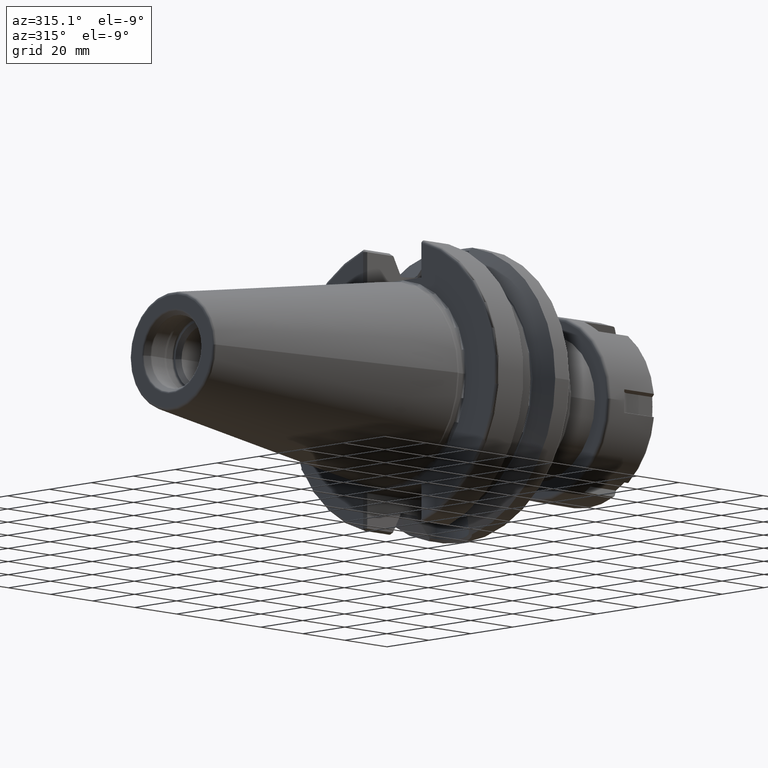
[diagram: clean part render]
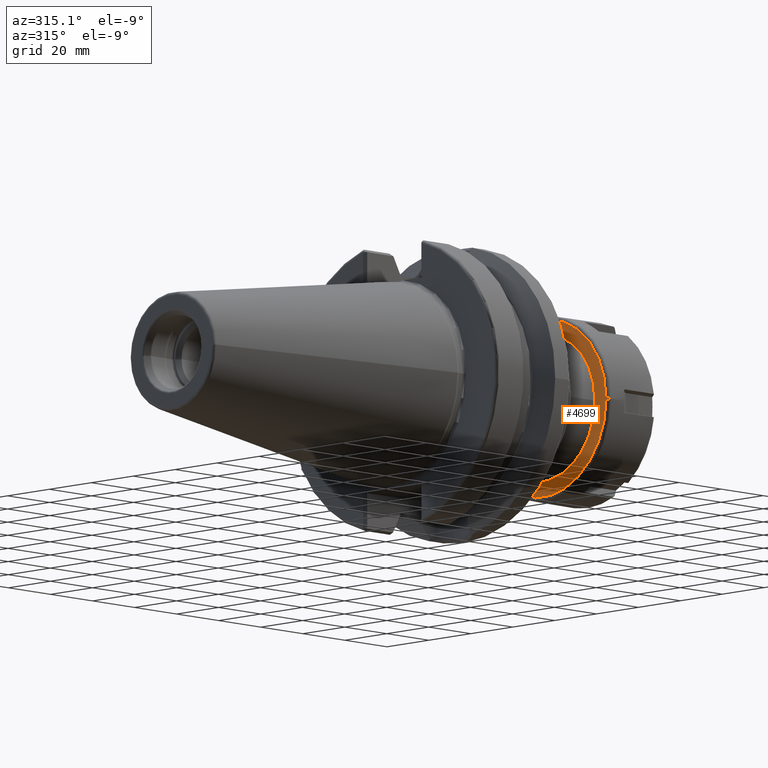
[diagram: same view with one face highlighted and labeled with its STEP entity id]
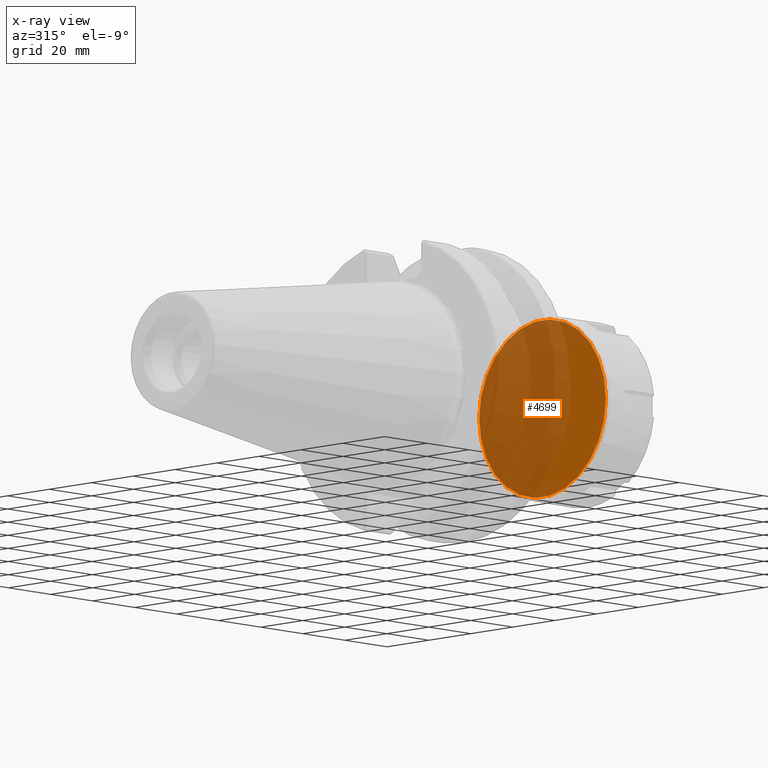
[diagram: x-ray of the same camera — body ghosted, the highlighted face saturated]
A machine part, auxiliary view. The second image highlights one B-rep face of the part: STEP entity #4699.
The next image is the same camera in x-ray: the body ghosted, the highlighted face saturated — about 69% of this face is hidden behind the body in this view.
In plain terms, the highlighted planar face has unit normal (1, 0, 0).
Its self-contained STEP definition (entity closure, byte-faithful):
#3953=CARTESIAN_POINT('',(0.E0,0.E0,0.E0));
#3954=DIRECTION('',(-1.E0,0.E0,0.E0));
#3955=DIRECTION('',(0.E0,1.E0,0.E0));
#3956=AXIS2_PLACEMENT_3D('',#3953,#3954,#3955);
#3958=CARTESIAN_POINT('',(0.E0,0.E0,0.E0));
#3959=DIRECTION('',(-1.E0,0.E0,0.E0));
#3960=DIRECTION('',(0.E0,-1.E0,0.E0));
#3961=AXIS2_PLACEMENT_3D('',#3958,#3959,#3960);
#4116=CARTESIAN_POINT('',(0.E0,3.024999999997E1,1.713825516537E-14));
#4117=CARTESIAN_POINT('',(1.719369494877E-14,-3.024999999997E1,
-3.427651033073E-14));
#4118=VERTEX_POINT('',#4116);
#4119=VERTEX_POINT('',#4117);
#4689=CARTESIAN_POINT('',(0.E0,0.E0,0.E0));
#4690=DIRECTION('',(1.E0,0.E0,0.E0));
#4691=DIRECTION('',(0.E0,-1.E0,0.E0));
#4692=AXIS2_PLACEMENT_3D('',#4689,#4690,#4691);
#4693=PLANE('',#4692);
#4695=ORIENTED_EDGE('',*,*,#4694,.F.);
#4696=ORIENTED_EDGE('',*,*,#4679,.F.);
#4697=EDGE_LOOP('',(#4695,#4696));
#4698=FACE_OUTER_BOUND('',#4697,.F.);
#4699=ADVANCED_FACE('',(#4698),#4693,.F.);
#3957=CIRCLE('',#3956,3.024999999997E1);
#3962=CIRCLE('',#3961,3.024999999997E1);
#4679=EDGE_CURVE('',#4119,#4118,#3962,.T.);
#4694=EDGE_CURVE('',#4118,#4119,#3957,.T.);